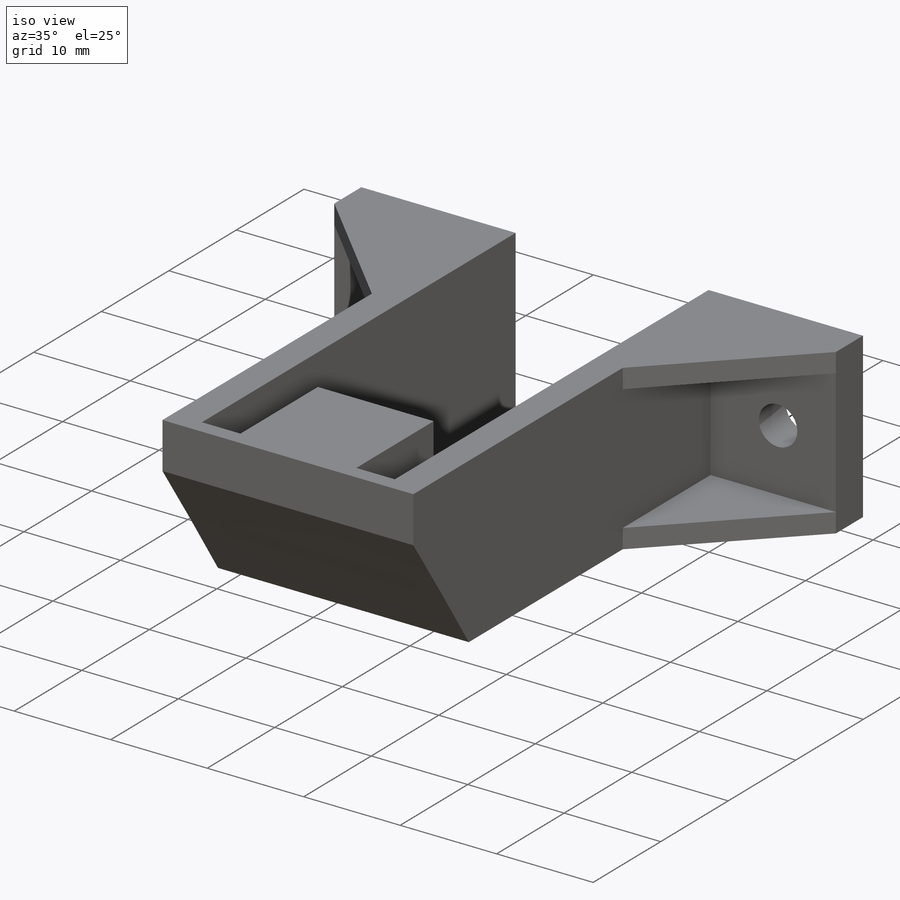
[diagram: iso view]
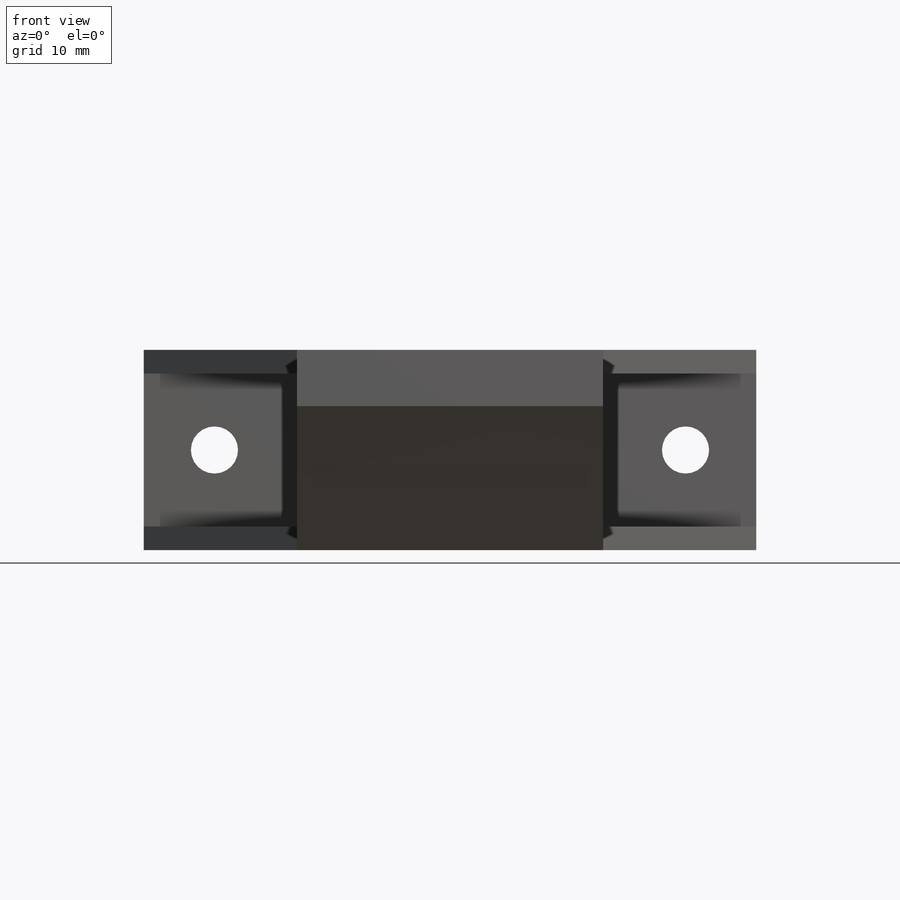
[diagram: front view]
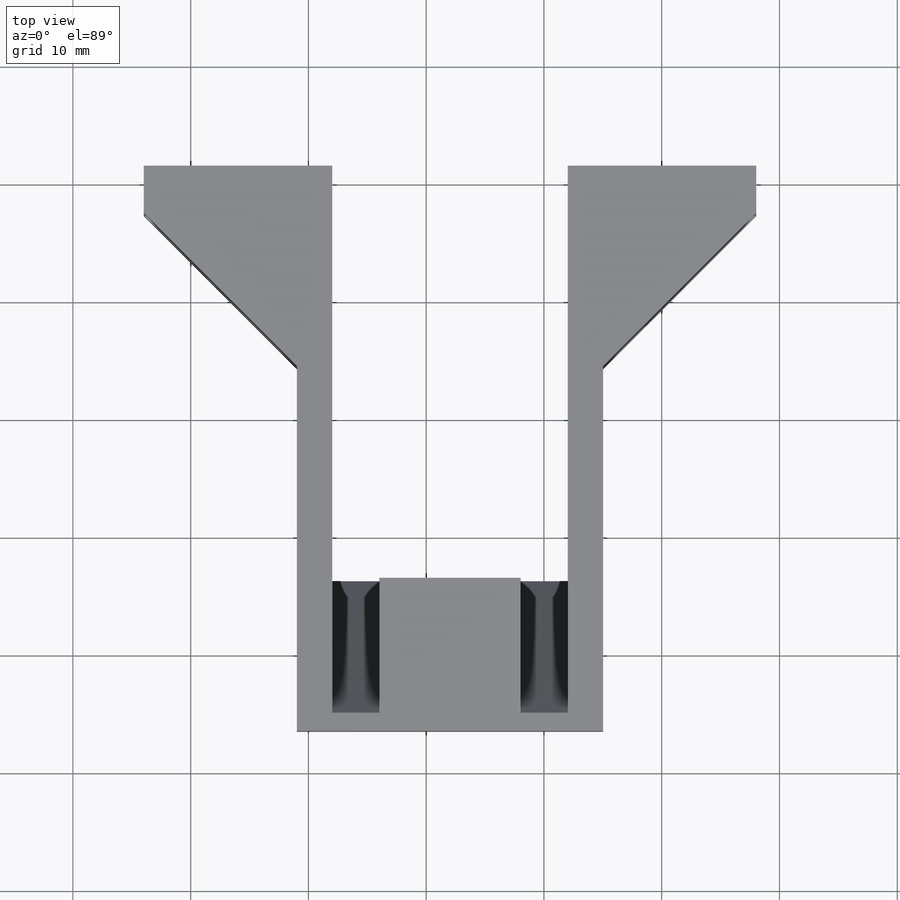
[diagram: top view]
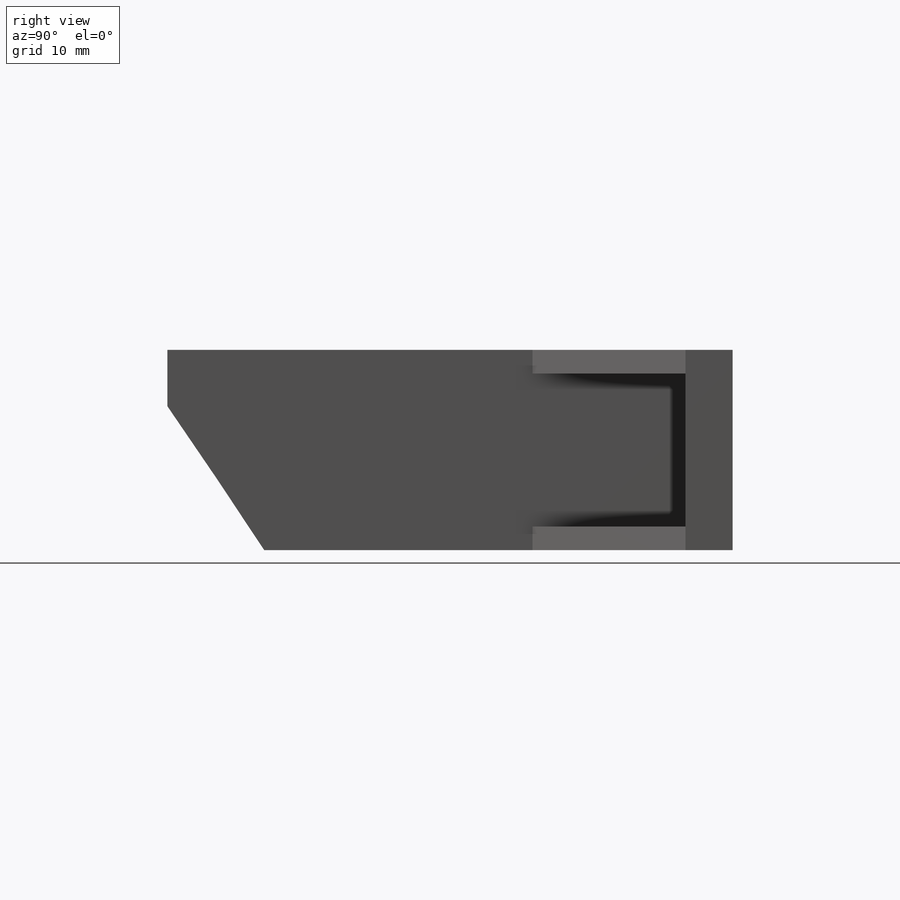
[diagram: right view]
SOLIDWORKS PART (.sldprt)
format: sldprt  version: not decoded by parser v0  size: 226,816 bytes
history: native  units: mm
features: sketch x7, cut_extrude x4, extrude x3, material x1 (+11 scaffold rows collapsed)
feature tree (26):
  scaffold x11  (default folders/planes/origin — collapsed)
  material  "Material <not specified>"
  sketch  "Sketch1"  dims[D1=13.0mm D2=3.0mm D3=3.0mm D4=35.0mm D5=20.0mm D6=16.0mm]
  extrude  "Boss-Extrude1"  Depth=17mm
  sketch  "Sketch4"
  extrude  "Boss-Extrude2"  Depth=2mm
  sketch  "Sketch5"
  extrude  "Boss-Extrude3"  Depth=2mm
  sketch  "Sketch6"  dims[c1.D2=~3.336767mm c1.D3=2.3mm c1.D1=10.0mm c2.D2=10.0mm c2.D3=6.5mm c2.D4=7.0mm]
  cut_extrude  "Cut-Extrude1"  Depth=10mm
  sketch  "Sketch7"
  cut_extrude  "Cut-Extrude2"  Depth=4mm
  sketch  "Sketch8"  dims[D1=4.0mm]
  cut_extrude  "Cut-Extrude3"  Depth=100mm
  sketch  "Sketch9"
  cut_extrude  "Cut-Extrude4"  Depth=4mm
decode coverage: 10 of 14 modeling features carry decoded parameters
note: ~ marks probable driven/reference dimensions
note: suppression state not decoded; provenance and decode notes live in map.json
